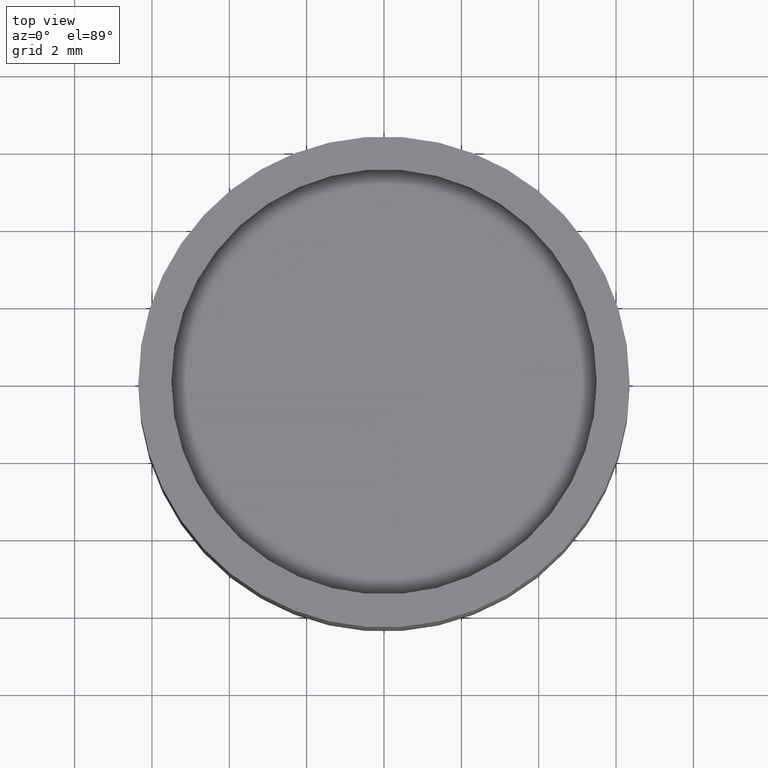
[diagram: clean part render]
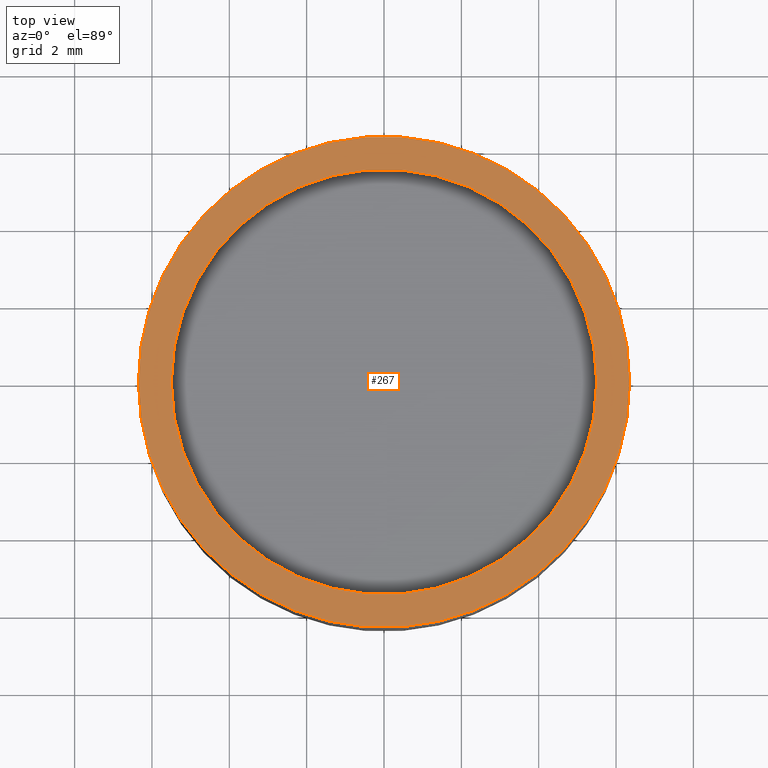
[diagram: same view with one face highlighted and labeled with its STEP entity id]
A machine part, top view. The second image highlights one B-rep face of the part: STEP entity #267.
In plain terms, the highlighted planar face has unit normal (0, 0, 1).
Its self-contained STEP definition (entity closure, byte-faithful):
#4 = ORIENTED_EDGE ( 'NONE', *, *, #215, .T. ) ;
#11 = AXIS2_PLACEMENT_3D ( 'NONE', #251, #446, #330 ) ;
#34 = VERTEX_POINT ( 'NONE', #288 ) ;
#39 = AXIS2_PLACEMENT_3D ( 'NONE', #91, #92, #243 ) ;
#46 = CARTESIAN_POINT ( 'NONE',  ( 0.000000000000000000, 0.000000000000000000, 6.000000000000000000 ) ) ;
#47 = CARTESIAN_POINT ( 'NONE',  ( 6.349999999999999645, 7.776507174585692163E-16, 6.000000000000000000 ) ) ;
#64 = EDGE_LOOP ( 'NONE', ( #348, #370 ) ) ;
#65 = EDGE_CURVE ( 'NONE', #113, #311, #457, .T. ) ;
#72 = CARTESIAN_POINT ( 'NONE',  ( 5.500000000000000000, 0.000000000000000000, 6.000000000000000000 ) ) ;
#91 = CARTESIAN_POINT ( 'NONE',  ( 0.000000000000000000, 0.000000000000000000, 6.000000000000000000 ) ) ;
#92 = DIRECTION ( 'NONE',  ( 0.000000000000000000, 0.000000000000000000, 1.000000000000000000 ) ) ;
#94 = CARTESIAN_POINT ( 'NONE',  ( 0.000000000000000000, 0.000000000000000000, 6.000000000000000000 ) ) ;
#113 = VERTEX_POINT ( 'NONE', #47 ) ;
#114 = EDGE_CURVE ( 'NONE', #34, #374, #399, .T. ) ;
#163 = CARTESIAN_POINT ( 'NONE',  ( 0.000000000000000000, 0.000000000000000000, 6.000000000000000000 ) ) ;
#187 = ORIENTED_EDGE ( 'NONE', *, *, #65, .T. ) ;
#215 = EDGE_CURVE ( 'NONE', #311, #113, #261, .T. ) ;
#220 = EDGE_CURVE ( 'NONE', #374, #34, #470, .T. ) ;
#221 = FACE_BOUND ( 'NONE', #64, .T. ) ;
#243 = DIRECTION ( 'NONE',  ( 1.000000000000000000, 0.000000000000000000, 0.000000000000000000 ) ) ;
#251 = CARTESIAN_POINT ( 'NONE',  ( 0.000000000000000000, 0.000000000000000000, 6.000000000000000000 ) ) ;
#257 = PLANE ( 'NONE',  #372 ) ;
#261 = CIRCLE ( 'NONE', #305, 6.349999999999999645 ) ;
#267 = ADVANCED_FACE ( 'NONE', ( #221, #296 ), #257, .T. ) ;
#288 = CARTESIAN_POINT ( 'NONE',  ( -5.500000000000000000, 6.735557395310442023E-16, 6.000000000000000000 ) ) ;
#293 = DIRECTION ( 'NONE',  ( 1.000000000000000000, 0.000000000000000000, 0.000000000000000000 ) ) ;
#296 = FACE_OUTER_BOUND ( 'NONE', #418, .T. ) ;
#305 = AXIS2_PLACEMENT_3D ( 'NONE', #163, #320, #293 ) ;
#311 = VERTEX_POINT ( 'NONE', #487 ) ;
#320 = DIRECTION ( 'NONE',  ( 0.000000000000000000, 0.000000000000000000, 1.000000000000000000 ) ) ;
#330 = DIRECTION ( 'NONE',  ( 1.000000000000000000, 0.000000000000000000, 0.000000000000000000 ) ) ;
#348 = ORIENTED_EDGE ( 'NONE', *, *, #220, .F. ) ;
#354 = DIRECTION ( 'NONE',  ( 0.000000000000000000, 0.000000000000000000, 1.000000000000000000 ) ) ;
#363 = DIRECTION ( 'NONE',  ( 0.000000000000000000, 0.000000000000000000, 1.000000000000000000 ) ) ;
#367 = AXIS2_PLACEMENT_3D ( 'NONE', #46, #354, #441 ) ;
#370 = ORIENTED_EDGE ( 'NONE', *, *, #114, .F. ) ;
#372 = AXIS2_PLACEMENT_3D ( 'NONE', #94, #363, #478 ) ;
#374 = VERTEX_POINT ( 'NONE', #72 ) ;
#399 = CIRCLE ( 'NONE', #367, 5.500000000000000000 ) ;
#418 = EDGE_LOOP ( 'NONE', ( #4, #187 ) ) ;
#441 = DIRECTION ( 'NONE',  ( 1.000000000000000000, 0.000000000000000000, 0.000000000000000000 ) ) ;
#446 = DIRECTION ( 'NONE',  ( 0.000000000000000000, 0.000000000000000000, 1.000000000000000000 ) ) ;
#457 = CIRCLE ( 'NONE', #39, 6.349999999999999645 ) ;
#470 = CIRCLE ( 'NONE', #11, 5.500000000000000000 ) ;
#478 = DIRECTION ( 'NONE',  ( 1.000000000000000000, 0.000000000000000000, -0.000000000000000000 ) ) ;
#487 = CARTESIAN_POINT ( 'NONE',  ( -6.349999999999999645, 0.000000000000000000, 6.000000000000000000 ) ) ;